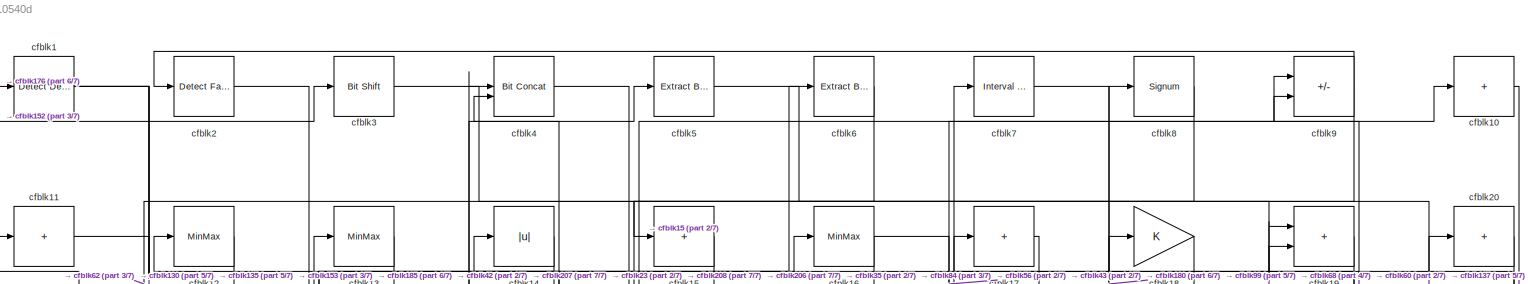
[diagram: root canvas - part 1/7, full width, top band]
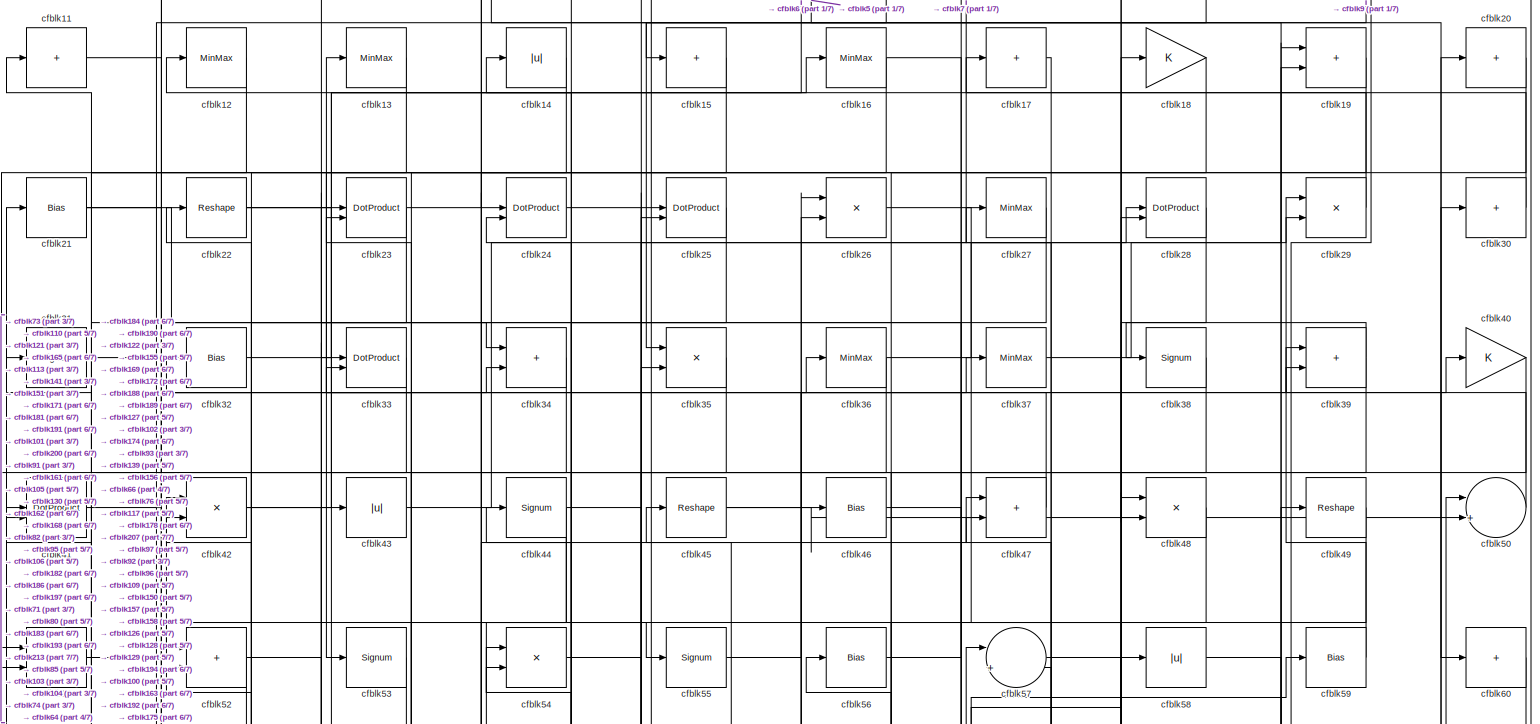
[diagram: root canvas - part 2/7, full width, top band]
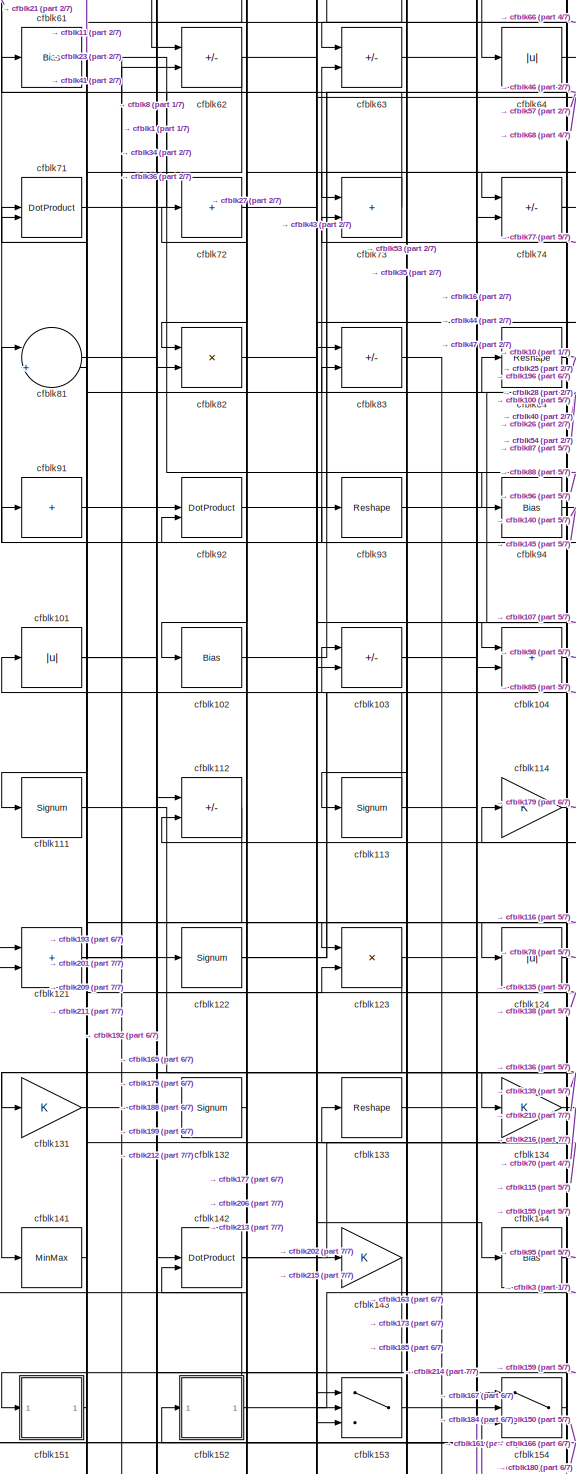
[diagram: root canvas - part 3/7, middle left region]
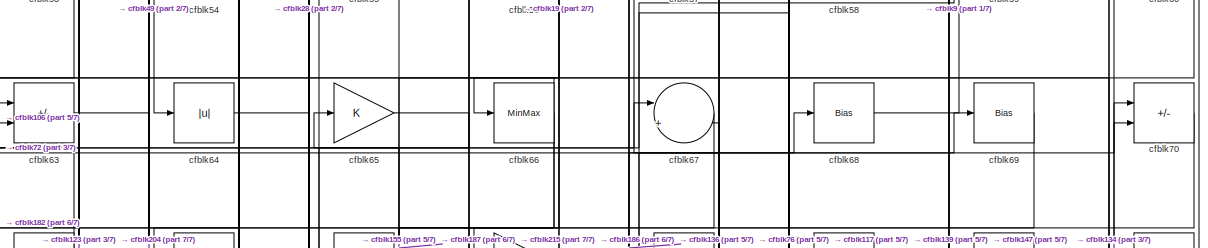
[diagram: root canvas - part 4/7, full width, top band]
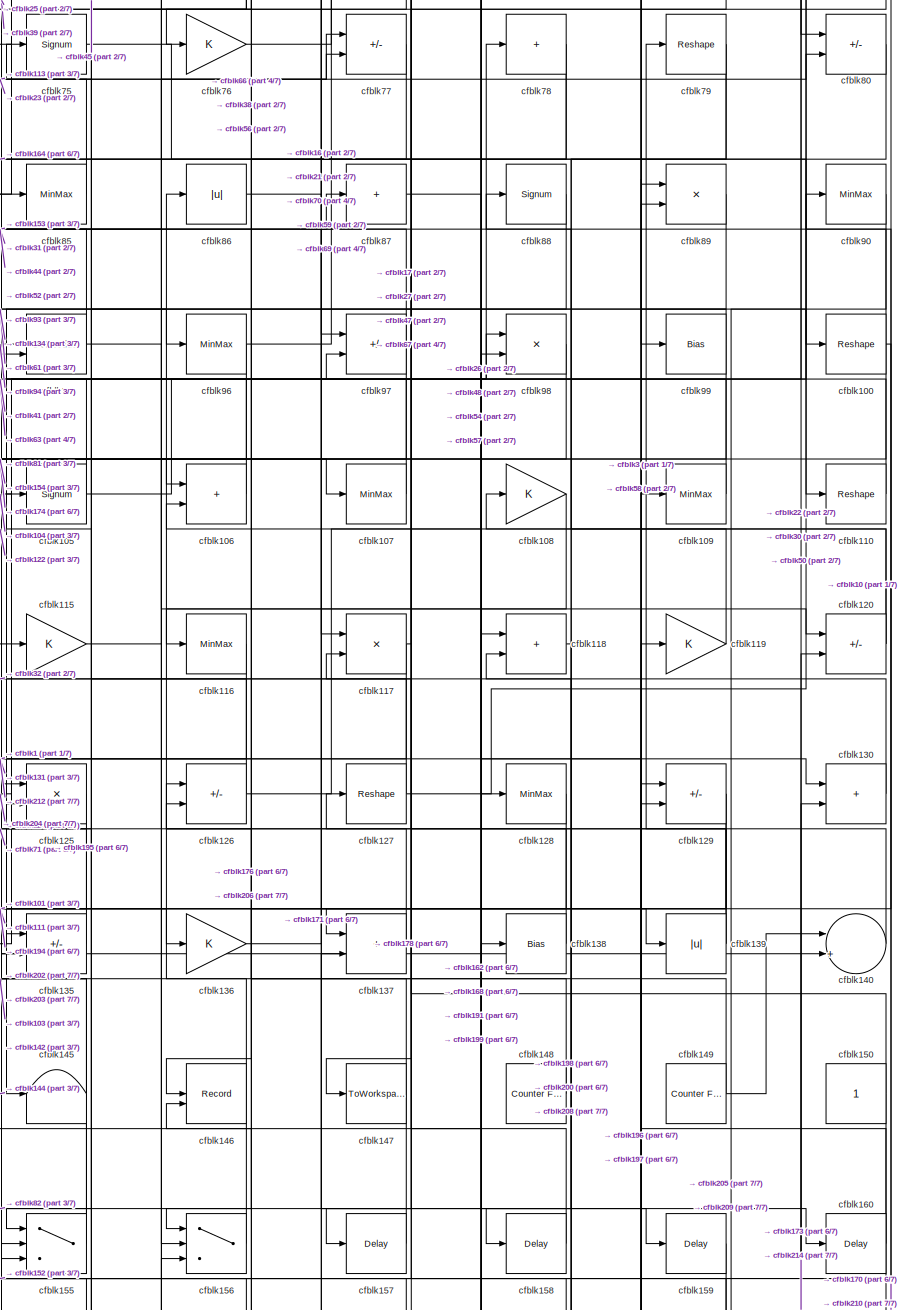
[diagram: root canvas - part 5/7, middle right region]
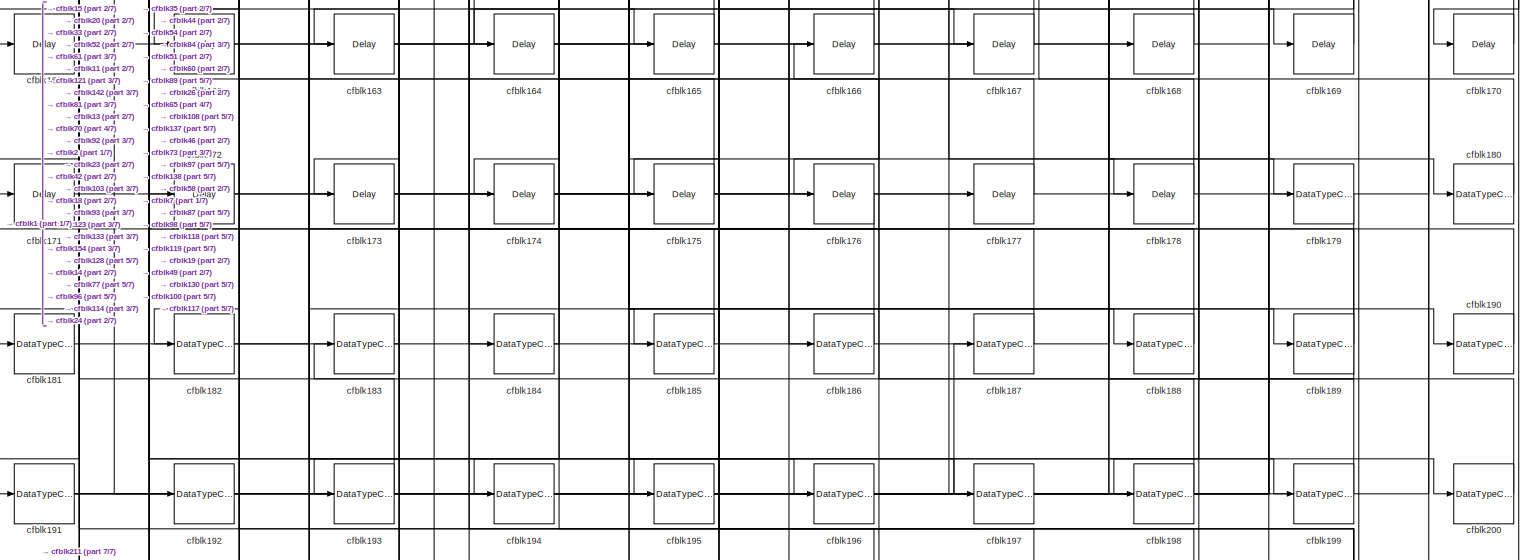
[diagram: root canvas - part 6/7, full width, bottom band]
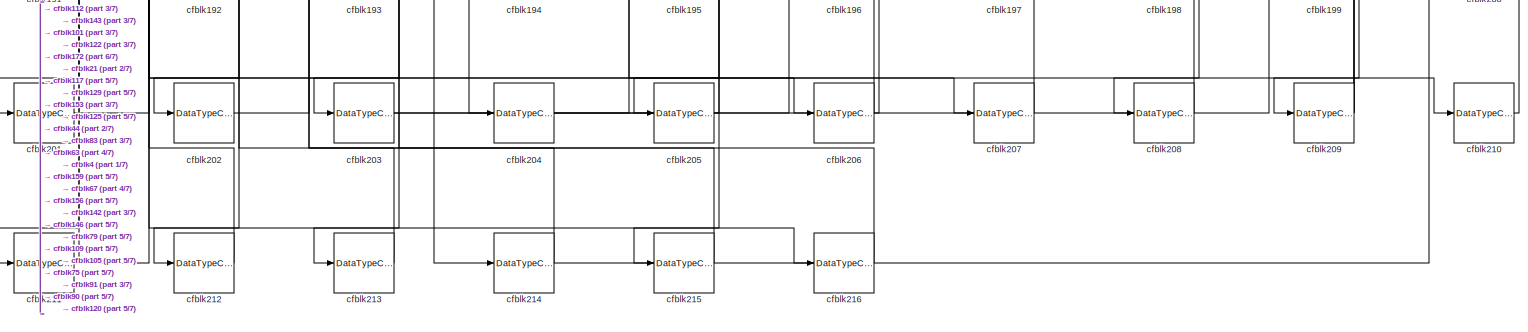
[diagram: root canvas - part 7/7, full width, bottom band]
MODEL slx_ccb60510540d
KIND model
CONFIG AbsTol = auto
CONFIG EnableMultiTasking = off
CONFIG FixedStep = auto
CONFIG MaxStep = auto
CONFIG MinStep = auto
CONFIG RelTol = 1e-3
CONFIG SampleTimeConstraint = Unconstrained
CONFIG SolverName = VariableStepAuto
CONFIG StartTime = 0.0
CONFIG StopTime = 10.0
BLOCK [Reference] cfblk1  REF=simulink/Logic and Bit
Operations/Detect
Decrease
  LibrarySourceBlock = hdlsllib/Logic and Bit\nOperations/Detect\nDecrease
  SourceBlock = simulink/Logic and Bit\nOperations/Detect\nDecrease
  SourceType = Detect Decrease
BLOCK [Sum] cfblk10
  IconShape = rectangular
  Inputs = +
BLOCK [Reshape] cfblk100
BLOCK [Abs] cfblk101
  SaturateOnIntegerOverflow = off
BLOCK [Bias] cfblk102
  Bias = 0.0
  SaturateOnIntegerOverflow = off
BLOCK [Sum] cfblk103
  IconShape = rectangular
  Inputs = +-
BLOCK [Sum] cfblk104
  IconShape = rectangular
BLOCK [Signum] cfblk105
BLOCK [Sum] cfblk106
  IconShape = rectangular
BLOCK [MinMax] cfblk107
BLOCK [Gain] cfblk108
BLOCK [MinMax] cfblk109
BLOCK [Sum] cfblk11
  IconShape = rectangular
  Inputs = +
BLOCK [Reshape] cfblk110
BLOCK [Signum] cfblk111
BLOCK [Sum] cfblk112
  IconShape = rectangular
  Inputs = +-
BLOCK [Signum] cfblk113
BLOCK [Gain] cfblk114
BLOCK [Gain] cfblk115
BLOCK [MinMax] cfblk116
BLOCK [Product] cfblk117
  Inputs = */
  RndMeth = Zero
  SaturateOnIntegerOverflow = on
BLOCK [Sum] cfblk118
  IconShape = rectangular
BLOCK [Gain] cfblk119
BLOCK [MinMax] cfblk12
BLOCK [Sum] cfblk120
  IconShape = rectangular
  Inputs = +-
BLOCK [Sum] cfblk121
  IconShape = rectangular
BLOCK [Signum] cfblk122
BLOCK [Product] cfblk123
  Inputs = */
  RndMeth = Zero
  SaturateOnIntegerOverflow = on
BLOCK [Abs] cfblk124
  SaturateOnIntegerOverflow = off
BLOCK [Product] cfblk125
  Inputs = */
  RndMeth = Zero
  SaturateOnIntegerOverflow = on
BLOCK [Sum] cfblk126
  IconShape = rectangular
  Inputs = +-
BLOCK [Reshape] cfblk127
BLOCK [MinMax] cfblk128
BLOCK [Sum] cfblk129
  IconShape = rectangular
  Inputs = +-
BLOCK [MinMax] cfblk13
BLOCK [Sum] cfblk130
  IconShape = rectangular
BLOCK [Gain] cfblk131
BLOCK [Signum] cfblk132
BLOCK [Reshape] cfblk133
BLOCK [Gain] cfblk134
BLOCK [Sum] cfblk135
  IconShape = rectangular
  Inputs = +-
BLOCK [Gain] cfblk136
BLOCK [Sum] cfblk137
  IconShape = rectangular
BLOCK [Bias] cfblk138
  Bias = 0.0
  SaturateOnIntegerOverflow = off
BLOCK [Abs] cfblk139
  SaturateOnIntegerOverflow = off
BLOCK [Abs] cfblk14
  SaturateOnIntegerOverflow = off
BLOCK [Sum] cfblk140
  Inputs = |++
BLOCK [MinMax] cfblk141
BLOCK [DotProduct] cfblk142
  OutDataTypeStr = Inherit: Inherit via internal rule
BLOCK [Gain] cfblk143
BLOCK [Bias] cfblk144
  Bias = 0.0
  SaturateOnIntegerOverflow = off
BLOCK [Terminator] cfblk145
BLOCK [Record] cfblk146
  CompatibilityTag = XY
  FileSettingsInternal = {"entries":[{"content":{"excelSettings":{"content":{},"type":"Streamout.ExcelSettings"}},"type":"Streamout.FileSettingStorage","uuid":""}],"packageUris":["http:\/\/schema.mathworks.com\/mf0\/streamout_blocks\/R2020a"],"version":"1.0"}
  Layout = [1 1]
  SignalsInternal = {"entries":[{"content":{"signals":[{"content":{"blockPath":[],"dimensions":[1],"domain":"","lineColor":"#a2142f","plots":[1],"port":1,"signalID":4512,"signalName":"XY Graph:1"},"type":"RecordBlkView.Signal","uuid":""},{"content":{"blockPath":[],"dimensions":[1],"domain":"","lineColor":"#139fff","plots":[1],"port":2,"signalID":4515,"signalName":"XY Graph:2"},"type":"RecordBlkView.Signal","uuid":""}...<+146ch>
  VisualizationBindings = {"xyplotplugin":{"info":[{"series":[{"bindingParametersList":[{"parameter":"X-Axis","signalID":4512,"signalName":"XY Graph:1"},{"parameter":"Y-Axis","signalID":4515,"signalName":"XY Graph:2"}],"seriesID":51865}],"subplotID":1}]}}
  st = -1
BLOCK [ToWorkspace] cfblk147
  MaxDataPoints = inf
  SampleTime = -1
  SaveFormat = Timeseries
  VariableName = simout
BLOCK [Reference] cfblk148  REF=hdlsllib/Sources/Counter
Free-Running
  SourceBlock = hdlsllib/Sources/Counter\nFree-Running
  SourceType = Counter Free-Running
BLOCK [Reference] cfblk149  REF=hdlsllib/Sources/Counter
Free-Running
  SourceBlock = hdlsllib/Sources/Counter\nFree-Running
  SourceType = Counter Free-Running
BLOCK [Sum] cfblk15
  IconShape = rectangular
  Inputs = +
BLOCK [Constant] cfblk150
  SampleTime = -1
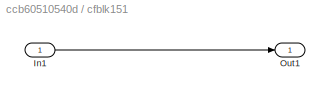
BLOCK [SubSystem] cfblk151
  LibrarySourceBlock = hdlsllib/Ports &\nSubsystems/Subsystem
BLOCK [Inport] cfblk151/In1
BLOCK [Outport] cfblk151/Out1
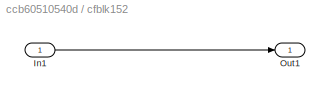
BLOCK [SubSystem] cfblk152
  LibrarySourceBlock = hdlsllib/Ports &\nSubsystems/Subsystem
BLOCK [Inport] cfblk152/In1
BLOCK [Outport] cfblk152/Out1
BLOCK [Switch] cfblk153
  InputSameDT = off
  SaturateOnIntegerOverflow = off
BLOCK [Switch] cfblk154
  InputSameDT = off
  SaturateOnIntegerOverflow = off
BLOCK [Switch] cfblk155
  InputSameDT = off
  SaturateOnIntegerOverflow = off
BLOCK [Switch] cfblk156
  InputSameDT = off
  SaturateOnIntegerOverflow = off
BLOCK [Delay] cfblk157
  InputPortMap = u0
  SampleTime = 1
BLOCK [Delay] cfblk158
  InputPortMap = u0
  SampleTime = 1
BLOCK [Delay] cfblk159
  InputPortMap = u0
  SampleTime = 1
BLOCK [MinMax] cfblk16
BLOCK [Delay] cfblk160
  InputPortMap = u0
  SampleTime = 1
BLOCK [Delay] cfblk161
  InputPortMap = u0
  SampleTime = 1
BLOCK [Delay] cfblk162
  InputPortMap = u0
  SampleTime = 1
BLOCK [Delay] cfblk163
  InputPortMap = u0
  SampleTime = 1
BLOCK [Delay] cfblk164
  InputPortMap = u0
  SampleTime = 1
BLOCK [Delay] cfblk165
  InputPortMap = u0
  SampleTime = 1
BLOCK [Delay] cfblk166
  InputPortMap = u0
  SampleTime = 1
BLOCK [Delay] cfblk167
  InputPortMap = u0
  SampleTime = 1
BLOCK [Delay] cfblk168
  InputPortMap = u0
  SampleTime = 1
BLOCK [Delay] cfblk169
  InputPortMap = u0
  SampleTime = 1
BLOCK [Sum] cfblk17
  IconShape = rectangular
  Inputs = +
BLOCK [Delay] cfblk170
  InputPortMap = u0
  SampleTime = 1
BLOCK [Delay] cfblk171
  InputPortMap = u0
  SampleTime = 1
BLOCK [Delay] cfblk172
  InputPortMap = u0
  SampleTime = 1
BLOCK [Delay] cfblk173
  InputPortMap = u0
  SampleTime = 1
BLOCK [Delay] cfblk174
  InputPortMap = u0
  SampleTime = 1
BLOCK [Delay] cfblk175
  InputPortMap = u0
  SampleTime = 1
BLOCK [Delay] cfblk176
  InputPortMap = u0
  SampleTime = 1
BLOCK [Delay] cfblk177
  InputPortMap = u0
  SampleTime = 1
BLOCK [Delay] cfblk178
  InputPortMap = u0
  SampleTime = 1
BLOCK [DataTypeConversion] cfblk179
  OutDataTypeStr = uint8
  RndMeth = Floor
  SaturateOnIntegerOverflow = off
BLOCK [Gain] cfblk18
BLOCK [DataTypeConversion] cfblk180
  OutDataTypeStr = uint8
  RndMeth = Floor
  SaturateOnIntegerOverflow = off
BLOCK [DataTypeConversion] cfblk181
  OutDataTypeStr = uint8
  RndMeth = Floor
  SaturateOnIntegerOverflow = off
BLOCK [DataTypeConversion] cfblk182
  OutDataTypeStr = uint8
  RndMeth = Floor
  SaturateOnIntegerOverflow = off
BLOCK [DataTypeConversion] cfblk183
  OutDataTypeStr = uint8
  RndMeth = Floor
  SaturateOnIntegerOverflow = off
BLOCK [DataTypeConversion] cfblk184
  OutDataTypeStr = uint8
  RndMeth = Floor
  SaturateOnIntegerOverflow = off
BLOCK [DataTypeConversion] cfblk185
  OutDataTypeStr = uint8
  RndMeth = Floor
  SaturateOnIntegerOverflow = off
BLOCK [DataTypeConversion] cfblk186
  OutDataTypeStr = uint8
  RndMeth = Floor
  SaturateOnIntegerOverflow = off
BLOCK [DataTypeConversion] cfblk187
  OutDataTypeStr = uint8
  RndMeth = Floor
  SaturateOnIntegerOverflow = off
BLOCK [DataTypeConversion] cfblk188
  OutDataTypeStr = uint8
  RndMeth = Floor
  SaturateOnIntegerOverflow = off
BLOCK [DataTypeConversion] cfblk189
  OutDataTypeStr = uint8
  RndMeth = Floor
  SaturateOnIntegerOverflow = off
BLOCK [Sum] cfblk19
  IconShape = rectangular
BLOCK [DataTypeConversion] cfblk190
  OutDataTypeStr = uint8
  RndMeth = Floor
  SaturateOnIntegerOverflow = off
BLOCK [DataTypeConversion] cfblk191
  RndMeth = Floor
  SaturateOnIntegerOverflow = off
BLOCK [DataTypeConversion] cfblk192
  OutDataTypeStr = uint8
  RndMeth = Floor
  SaturateOnIntegerOverflow = off
BLOCK [DataTypeConversion] cfblk193
  RndMeth = Floor
  SaturateOnIntegerOverflow = off
BLOCK [DataTypeConversion] cfblk194
  OutDataTypeStr = uint8
  RndMeth = Floor
  SaturateOnIntegerOverflow = off
BLOCK [DataTypeConversion] cfblk195
  OutDataTypeStr = uint8
  RndMeth = Floor
  SaturateOnIntegerOverflow = off
BLOCK [DataTypeConversion] cfblk196
  OutDataTypeStr = uint8
  RndMeth = Floor
  SaturateOnIntegerOverflow = off
BLOCK [DataTypeConversion] cfblk197
  OutDataTypeStr = uint8
  RndMeth = Floor
  SaturateOnIntegerOverflow = off
BLOCK [DataTypeConversion] cfblk198
  OutDataTypeStr = uint8
  RndMeth = Floor
  SaturateOnIntegerOverflow = off
BLOCK [DataTypeConversion] cfblk199
  OutDataTypeStr = uint8
  RndMeth = Floor
  SaturateOnIntegerOverflow = off
BLOCK [Reference] cfblk2  REF=hdlsllib/Logic and Bit
Operations/Detect Fall
Nonpositive
  SourceBlock = hdlsllib/Logic and Bit\nOperations/Detect Fall\nNonpositive
  SourceType = Detect Fall Nonpositive
BLOCK [Sum] cfblk20
  IconShape = rectangular
  Inputs = +
BLOCK [DataTypeConversion] cfblk200
  OutDataTypeStr = uint8
  RndMeth = Floor
  SaturateOnIntegerOverflow = off
BLOCK [DataTypeConversion] cfblk201
  OutDataTypeStr = uint8
  RndMeth = Floor
  SaturateOnIntegerOverflow = off
BLOCK [DataTypeConversion] cfblk202
  OutDataTypeStr = uint8
  RndMeth = Floor
  SaturateOnIntegerOverflow = off
BLOCK [DataTypeConversion] cfblk203
  RndMeth = Floor
  SaturateOnIntegerOverflow = off
BLOCK [DataTypeConversion] cfblk204
  OutDataTypeStr = uint8
  RndMeth = Floor
  SaturateOnIntegerOverflow = off
BLOCK [DataTypeConversion] cfblk205
  OutDataTypeStr = uint8
  RndMeth = Floor
  SaturateOnIntegerOverflow = off
BLOCK [DataTypeConversion] cfblk206
  RndMeth = Floor
  SaturateOnIntegerOverflow = off
BLOCK [DataTypeConversion] cfblk207
  OutDataTypeStr = uint8
  RndMeth = Floor
  SaturateOnIntegerOverflow = off
BLOCK [DataTypeConversion] cfblk208
  OutDataTypeStr = uint8
  RndMeth = Floor
  SaturateOnIntegerOverflow = off
BLOCK [DataTypeConversion] cfblk209
  RndMeth = Floor
  SaturateOnIntegerOverflow = off
BLOCK [Bias] cfblk21
  Bias = 0.0
  SaturateOnIntegerOverflow = off
BLOCK [DataTypeConversion] cfblk210
  OutDataTypeStr = uint8
  RndMeth = Floor
  SaturateOnIntegerOverflow = off
BLOCK [DataTypeConversion] cfblk211
  RndMeth = Floor
  SaturateOnIntegerOverflow = off
BLOCK [DataTypeConversion] cfblk212
  OutDataTypeStr = uint8
  RndMeth = Floor
  SaturateOnIntegerOverflow = off
BLOCK [DataTypeConversion] cfblk213
  OutDataTypeStr = uint8
  RndMeth = Floor
  SaturateOnIntegerOverflow = off
BLOCK [DataTypeConversion] cfblk214
  RndMeth = Floor
  SaturateOnIntegerOverflow = off
BLOCK [DataTypeConversion] cfblk215
  OutDataTypeStr = uint8
  RndMeth = Floor
  SaturateOnIntegerOverflow = off
BLOCK [DataTypeConversion] cfblk216
  OutDataTypeStr = uint8
  RndMeth = Floor
  SaturateOnIntegerOverflow = off
BLOCK [Reshape] cfblk22
BLOCK [DotProduct] cfblk23
  OutDataTypeStr = Inherit: Inherit via internal rule
BLOCK [DotProduct] cfblk24
  OutDataTypeStr = Inherit: Inherit via internal rule
BLOCK [DotProduct] cfblk25
  OutDataTypeStr = Inherit: Inherit via internal rule
BLOCK [Product] cfblk26
  Inputs = */
  RndMeth = Zero
  SaturateOnIntegerOverflow = on
BLOCK [MinMax] cfblk27
BLOCK [DotProduct] cfblk28
  OutDataTypeStr = Inherit: Inherit via internal rule
BLOCK [Product] cfblk29
  Inputs = */
  RndMeth = Zero
  SaturateOnIntegerOverflow = on
BLOCK [Reference] cfblk3  REF=hdlsllib/Logic and Bit
Operations/Bit Shift
  SourceBlock = hdlsllib/Logic and Bit\nOperations/Bit Shift
  SourceType = Bit Shift
BLOCK [Sum] cfblk30
  IconShape = rectangular
  Inputs = +
BLOCK [Signum] cfblk31
BLOCK [Bias] cfblk32
  Bias = 0.0
  SaturateOnIntegerOverflow = off
BLOCK [DotProduct] cfblk33
  OutDataTypeStr = Inherit: Inherit via internal rule
BLOCK [Sum] cfblk34
  IconShape = rectangular
BLOCK [Product] cfblk35
  Inputs = */
  RndMeth = Zero
  SaturateOnIntegerOverflow = on
BLOCK [MinMax] cfblk36
BLOCK [MinMax] cfblk37
BLOCK [Signum] cfblk38
BLOCK [Sum] cfblk39
  IconShape = rectangular
BLOCK [Reference] cfblk4  REF=hdlsllib/Logic and Bit
Operations/Bit Concat
  SourceBlock = hdlsllib/Logic and Bit\nOperations/Bit Concat
  SourceType = Bit Concat
BLOCK [Gain] cfblk40
BLOCK [DotProduct] cfblk41
  OutDataTypeStr = Inherit: Inherit via internal rule
BLOCK [Product] cfblk42
  Inputs = */
  RndMeth = Zero
  SaturateOnIntegerOverflow = on
BLOCK [Abs] cfblk43
  SaturateOnIntegerOverflow = off
BLOCK [Signum] cfblk44
BLOCK [Reshape] cfblk45
BLOCK [Bias] cfblk46
  Bias = 0.0
  SaturateOnIntegerOverflow = off
BLOCK [Sum] cfblk47
  IconShape = rectangular
BLOCK [Product] cfblk48
  Inputs = */
  RndMeth = Zero
  SaturateOnIntegerOverflow = on
BLOCK [Reshape] cfblk49
BLOCK [Reference] cfblk5  REF=simulink/Logic and Bit
Operations/Extract Bits
  LibrarySourceBlock = hdlsllib/Logic and Bit\nOperations/Extract Bits
  SourceBlock = simulink/Logic and Bit\nOperations/Extract Bits
  SourceType = Extract Bits
BLOCK [Sum] cfblk50
  Inputs = |++
BLOCK [Sum] cfblk51
  IconShape = rectangular
BLOCK [Sum] cfblk52
  IconShape = rectangular
BLOCK [Signum] cfblk53
BLOCK [Product] cfblk54
  Inputs = */
  RndMeth = Zero
  SaturateOnIntegerOverflow = on
BLOCK [Signum] cfblk55
BLOCK [Bias] cfblk56
  Bias = 0.0
  SaturateOnIntegerOverflow = off
BLOCK [Sum] cfblk57
  Inputs = |++
BLOCK [Abs] cfblk58
  SaturateOnIntegerOverflow = off
BLOCK [Bias] cfblk59
  Bias = 0.0
  SaturateOnIntegerOverflow = off
BLOCK [Reference] cfblk6  REF=simulink/Logic and Bit
Operations/Extract Bits
  LibrarySourceBlock = hdlsllib/Logic and Bit\nOperations/Extract Bits
  SourceBlock = simulink/Logic and Bit\nOperations/Extract Bits
  SourceType = Extract Bits
BLOCK [Sum] cfblk60
  IconShape = rectangular
  Inputs = +
BLOCK [Bias] cfblk61
  Bias = 0.0
  SaturateOnIntegerOverflow = off
BLOCK [Sum] cfblk62
  IconShape = rectangular
  Inputs = +-
BLOCK [Sum] cfblk63
  IconShape = rectangular
  Inputs = +-
BLOCK [Abs] cfblk64
  SaturateOnIntegerOverflow = off
BLOCK [Gain] cfblk65
BLOCK [MinMax] cfblk66
BLOCK [Sum] cfblk67
  Inputs = |++
BLOCK [Bias] cfblk68
  Bias = 0.0
  SaturateOnIntegerOverflow = off
BLOCK [Bias] cfblk69
  Bias = 0.0
  SaturateOnIntegerOverflow = off
BLOCK [Reference] cfblk7  REF=hdlsllib/Logic and Bit
Operations/Interval Test
  SourceBlock = hdlsllib/Logic and Bit\nOperations/Interval Test
  SourceType = Interval Test
BLOCK [Sum] cfblk70
  IconShape = rectangular
  Inputs = +-
BLOCK [DotProduct] cfblk71
  OutDataTypeStr = Inherit: Inherit via internal rule
BLOCK [Sum] cfblk72
  IconShape = rectangular
  Inputs = +
BLOCK [Sum] cfblk73
  IconShape = rectangular
BLOCK [Sum] cfblk74
  IconShape = rectangular
  Inputs = +-
BLOCK [Signum] cfblk75
BLOCK [Gain] cfblk76
BLOCK [Sum] cfblk77
  IconShape = rectangular
  Inputs = +-
BLOCK [Sum] cfblk78
  IconShape = rectangular
  Inputs = +
BLOCK [Reshape] cfblk79
BLOCK [Signum] cfblk8
BLOCK [Sum] cfblk80
  IconShape = rectangular
  Inputs = +-
BLOCK [Sum] cfblk81
  Inputs = |++
BLOCK [Product] cfblk82
  Inputs = */
  RndMeth = Zero
  SaturateOnIntegerOverflow = on
BLOCK [Sum] cfblk83
  IconShape = rectangular
  Inputs = +-
BLOCK [Reshape] cfblk84
BLOCK [MinMax] cfblk85
BLOCK [Abs] cfblk86
  SaturateOnIntegerOverflow = off
BLOCK [Sum] cfblk87
  IconShape = rectangular
  Inputs = +
BLOCK [Signum] cfblk88
BLOCK [Product] cfblk89
  Inputs = */
  RndMeth = Zero
  SaturateOnIntegerOverflow = on
BLOCK [Sum] cfblk9
  IconShape = rectangular
  Inputs = +-
BLOCK [MinMax] cfblk90
BLOCK [Sum] cfblk91
  IconShape = rectangular
  Inputs = +
BLOCK [DotProduct] cfblk92
  OutDataTypeStr = Inherit: Inherit via internal rule
BLOCK [Reshape] cfblk93
BLOCK [Bias] cfblk94
  Bias = 0.0
  SaturateOnIntegerOverflow = off
BLOCK [DotProduct] cfblk95
  OutDataTypeStr = Inherit: Inherit via internal rule
BLOCK [MinMax] cfblk96
BLOCK [Sum] cfblk97
  IconShape = rectangular
  Inputs = +-
BLOCK [Product] cfblk98
  Inputs = */
  RndMeth = Zero
  SaturateOnIntegerOverflow = on
BLOCK [Bias] cfblk99
  Bias = 0.0
  SaturateOnIntegerOverflow = off
NET cfblk100:1 -> cfblk113:1, cfblk170:1, cfblk31:1
NET cfblk101:1 -> cfblk139:1, cfblk210:1, cfblk216:1, cfblk34:2
LINE cfblk102:1 -> cfblk46:1
NET cfblk103:1 -> cfblk163:1, cfblk47:1, cfblk77:2
LINE cfblk104:1 -> cfblk98:1
NET cfblk105:1 -> cfblk22:1, cfblk30:1
LINE cfblk106:1 -> cfblk63:2
LINE cfblk107:1 -> cfblk81:1
LINE cfblk108:1 -> cfblk176:1
LINE cfblk109:1 -> cfblk27:1
LINE cfblk10:1 -> cfblk137:1
LINE cfblk110:1 -> cfblk41:1
LINE cfblk111:1 -> cfblk136:1
LINE cfblk112:1 -> cfblk211:1
NET cfblk113:1 -> cfblk41:2, cfblk77:1
LINE cfblk114:1 -> cfblk179:1
LINE cfblk115:1 -> cfblk80:2
LINE cfblk116:1 -> cfblk131:1
NET cfblk117:1 -> cfblk212:1, cfblk67:2
LINE cfblk118:1 -> cfblk198:1
LINE cfblk119:1 -> cfblk108:1
LINE cfblk11:1 -> cfblk200:1
NET cfblk120:1 -> cfblk106:2, cfblk88:1
NET cfblk121:1 -> cfblk123:2, cfblk199:1, cfblk62:2
NET cfblk122:1 -> cfblk25:2, cfblk85:1
NET cfblk123:1 -> cfblk141:1, cfblk167:1
LINE cfblk124:1 -> cfblk78:1
LINE cfblk125:1 -> cfblk203:1
NET cfblk126:1 -> cfblk48:1, cfblk54:1
NET cfblk127:1 -> cfblk45:1, cfblk50:1
LINE cfblk128:1 -> cfblk194:1
NET cfblk129:1 -> cfblk146:1, cfblk202:1
LINE cfblk12:1 -> cfblk51:2
LINE cfblk130:1 -> cfblk32:1
LINE cfblk131:1 -> cfblk132:1
LINE cfblk132:1 -> cfblk72:1
LINE cfblk133:1 -> cfblk184:1
LINE cfblk134:1 -> cfblk70:1
LINE cfblk135:1 -> cfblk93:1
LINE cfblk136:1 -> cfblk70:2
LINE cfblk137:1 -> cfblk127:1
LINE cfblk138:1 -> cfblk71:2
NET cfblk139:1 -> cfblk56:1, cfblk67:1
LINE cfblk13:1 -> cfblk162:1
LINE cfblk140:1 -> cfblk79:1
LINE cfblk141:1 -> cfblk11:1
NET cfblk142:1 -> cfblk115:1, cfblk135:1
LINE cfblk143:1 -> cfblk201:1
LINE cfblk144:1 -> cfblk95:2
LINE cfblk148:1 -> cfblk126:1
NET cfblk149:1 -> cfblk126:2, cfblk140:1
LINE cfblk14:1 -> cfblk53:1
NET cfblk150:1 -> cfblk152:1, cfblk47:2
LINE cfblk151/In1:1 -> cfblk151/Out1:1
LINE cfblk151:1 -> cfblk71:1
LINE cfblk152/In1:1 -> cfblk152/Out1:1
NET cfblk152:1 -> cfblk3:1, cfblk8:1
LINE cfblk153:1 -> cfblk87:1
LINE cfblk154:1 -> cfblk84:1
NET cfblk155:1 -> cfblk103:1, cfblk81:2
LINE cfblk156:1 -> cfblk86:1
LINE cfblk157:1 -> cfblk25:1
LINE cfblk158:1 -> cfblk57:2
LINE cfblk159:1 -> cfblk205:1
LINE cfblk15:1 -> cfblk171:1
LINE cfblk160:1 -> cfblk129:1
LINE cfblk161:1 -> cfblk154:3
LINE cfblk162:1 -> cfblk98:2
LINE cfblk163:1 -> cfblk19:2
LINE cfblk164:1 -> cfblk190:1
LINE cfblk165:1 -> cfblk51:1
LINE cfblk166:1 -> cfblk154:1
LINE cfblk167:1 -> cfblk73:2
LINE cfblk168:1 -> cfblk42:2
LINE cfblk169:1 -> cfblk121:1
NET cfblk16:1 -> cfblk104:2, cfblk97:1
LINE cfblk170:1 -> cfblk117:2
LINE cfblk171:1 -> cfblk137:2
LINE cfblk172:1 -> cfblk35:2
LINE cfblk173:1 -> cfblk130:2
LINE cfblk174:1 -> cfblk26:2
LINE cfblk175:1 -> cfblk142:1
LINE cfblk176:1 -> cfblk1:1
LINE cfblk177:1 -> cfblk92:2
LINE cfblk178:1 -> cfblk97:2
LINE cfblk179:1 -> cfblk183:1
LINE cfblk17:1 -> cfblk157:1
LINE cfblk180:1 -> cfblk114:1
LINE cfblk181:1 -> cfblk58:1
LINE cfblk182:1 -> cfblk33:1
LINE cfblk183:1 -> cfblk33:2
LINE cfblk184:1 -> cfblk14:1
LINE cfblk185:1 -> cfblk133:1
LINE cfblk186:1 -> cfblk23:1
LINE cfblk187:1 -> cfblk65:1
LINE cfblk188:1 -> cfblk92:1
LINE cfblk189:1 -> cfblk24:1
LINE cfblk18:1 -> cfblk193:1
LINE cfblk190:1 -> cfblk24:2
NET cfblk191:1 -> cfblk119:1, cfblk138:1, cfblk187:1
LINE cfblk192:1 -> cfblk20:1
NET cfblk193:1 -> cfblk49:1, cfblk61:1
LINE cfblk194:1 -> cfblk18:1
LINE cfblk195:1 -> cfblk177:1
LINE cfblk196:1 -> cfblk89:1
LINE cfblk197:1 -> cfblk89:2
LINE cfblk198:1 -> cfblk166:1
LINE cfblk199:1 -> cfblk118:1
LINE cfblk19:1 -> cfblk66:1
NET cfblk1:1 -> cfblk130:1, cfblk135:2, cfblk153:2
LINE cfblk200:1 -> cfblk118:2
LINE cfblk201:1 -> cfblk122:1
LINE cfblk202:1 -> cfblk143:1
NET cfblk203:1 -> cfblk109:1, cfblk156:3
LINE cfblk204:1 -> cfblk125:1
LINE cfblk205:1 -> cfblk125:2
NET cfblk206:1 -> cfblk142:2, cfblk146:2
LINE cfblk207:1 -> cfblk4:1
LINE cfblk208:1 -> cfblk4:2
NET cfblk209:1 -> cfblk105:1, cfblk75:1, cfblk91:1
LINE cfblk20:1 -> cfblk191:1
LINE cfblk210:1 -> cfblk90:1
NET cfblk211:1 -> cfblk101:1, cfblk172:1
LINE cfblk212:1 -> cfblk112:1
LINE cfblk213:1 -> cfblk112:2
NET cfblk214:1 -> cfblk120:2, cfblk153:1
LINE cfblk215:1 -> cfblk83:1
LINE cfblk216:1 -> cfblk83:2
NET cfblk21:1 -> cfblk117:1, cfblk207:1
NET cfblk22:1 -> cfblk34:1, cfblk80:1
NET cfblk23:1 -> cfblk151:1, cfblk5:1
LINE cfblk24:1 -> cfblk188:1
LINE cfblk25:1 -> cfblk104:1
LINE cfblk26:1 -> cfblk128:1
LINE cfblk27:1 -> cfblk82:1
LINE cfblk28:1 -> cfblk48:2
LINE cfblk29:1 -> cfblk12:1
LINE cfblk2:1 -> cfblk185:1
LINE cfblk30:1 -> cfblk17:1
LINE cfblk31:1 -> cfblk55:1
LINE cfblk32:1 -> cfblk16:1
LINE cfblk33:1 -> cfblk181:1
LINE cfblk34:1 -> cfblk52:1
LINE cfblk35:1 -> cfblk73:1
NET cfblk36:1 -> cfblk121:2, cfblk19:1
LINE cfblk37:1 -> cfblk29:1
LINE cfblk38:1 -> cfblk76:1
NET cfblk39:1 -> cfblk155:3, cfblk38:1
LINE cfblk3:1 -> cfblk99:1
LINE cfblk40:1 -> cfblk74:1
LINE cfblk41:1 -> cfblk39:2
NET cfblk42:1 -> cfblk197:1, cfblk6:1
LINE cfblk43:1 -> cfblk7:1
NET cfblk44:1 -> cfblk189:1, cfblk213:1, cfblk74:2
NET cfblk45:1 -> cfblk37:1, cfblk50:2
LINE cfblk46:1 -> cfblk178:1
LINE cfblk47:1 -> cfblk13:1
LINE cfblk48:1 -> cfblk156:1
LINE cfblk49:1 -> cfblk64:1
LINE cfblk4:1 -> cfblk206:1
LINE cfblk50:1 -> cfblk29:2
LINE cfblk51:1 -> cfblk42:1
NET cfblk52:1 -> cfblk106:1, cfblk161:1
LINE cfblk53:1 -> cfblk82:2
LINE cfblk54:1 -> cfblk169:1
LINE cfblk55:1 -> cfblk40:1
LINE cfblk56:1 -> cfblk9:2
LINE cfblk57:1 -> cfblk129:2
LINE cfblk58:1 -> cfblk100:1
LINE cfblk59:1 -> cfblk39:1
LINE cfblk5:1 -> cfblk60:1
LINE cfblk60:1 -> cfblk175:1
NET cfblk61:1 -> cfblk192:1, cfblk96:1
NET cfblk62:1 -> cfblk111:1, cfblk144:1
LINE cfblk63:1 -> cfblk204:1
LINE cfblk64:1 -> cfblk28:1
LINE cfblk65:1 -> cfblk186:1
NET cfblk66:1 -> cfblk123:1, cfblk155:1, cfblk63:1
LINE cfblk67:1 -> cfblk215:1
LINE cfblk68:1 -> cfblk9:1
LINE cfblk69:1 -> cfblk147:1
LINE cfblk6:1 -> cfblk35:1
LINE cfblk70:1 -> cfblk182:1
LINE cfblk71:1 -> cfblk43:1
NET cfblk72:1 -> cfblk102:1, cfblk68:1
LINE cfblk73:1 -> cfblk21:1
NET cfblk74:1 -> cfblk124:1, cfblk28:2, cfblk54:2
LINE cfblk75:1 -> cfblk110:1
LINE cfblk76:1 -> cfblk69:1
LINE cfblk77:1 -> cfblk164:1
NET cfblk78:1 -> cfblk103:2, cfblk153:3
NET cfblk79:1 -> cfblk116:1, cfblk208:1
LINE cfblk7:1 -> cfblk180:1
LINE cfblk80:1 -> cfblk158:1
LINE cfblk81:1 -> cfblk165:1
LINE cfblk82:1 -> cfblk159:1
LINE cfblk83:1 -> cfblk214:1
NET cfblk84:1 -> cfblk10:1, cfblk196:1
LINE cfblk85:1 -> cfblk23:2
LINE cfblk86:1 -> cfblk160:1
LINE cfblk87:1 -> cfblk168:1
LINE cfblk88:1 -> cfblk134:1
LINE cfblk89:1 -> cfblk195:1
LINE cfblk8:1 -> cfblk62:1
LINE cfblk90:1 -> cfblk209:1
LINE cfblk91:1 -> cfblk36:1
NET cfblk92:1 -> cfblk57:1, cfblk94:1
NET cfblk93:1 -> cfblk107:1, cfblk173:1, cfblk26:1
NET cfblk94:1 -> cfblk140:2, cfblk145:1
NET cfblk95:1 -> cfblk120:1, cfblk52:2
NET cfblk96:1 -> cfblk174:1, cfblk59:1
NET cfblk97:1 -> cfblk156:2, cfblk44:1
LINE cfblk98:1 -> cfblk154:2
NET cfblk99:1 -> cfblk155:2, cfblk95:1
NET cfblk9:1 -> cfblk15:1, cfblk2:1
note: NET lines group one-source signal fan-out (src -> all destinations, sorted); 1:1 wires keep LINE
